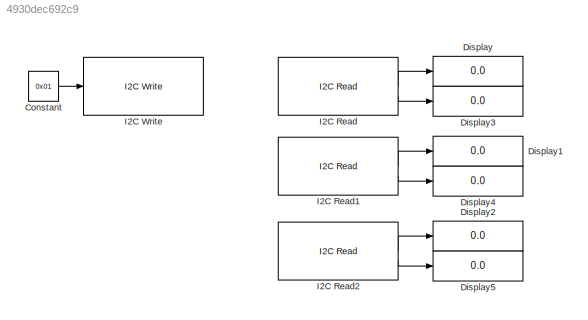
MODEL slx_4930dec692c9
KIND model
CONFIG AbsTol = auto
CONFIG EnableMultiTasking = off
CONFIG FixedStep = auto
CONFIG MaxStep = auto
CONFIG MinStep = auto
CONFIG RelTol = 1e-3
CONFIG SampleTimeConstraint = Unconstrained
CONFIG SolverName = FixedStepAuto
CONFIG StartTime = 0.0
CONFIG StopTime = inf
BLOCK [Constant] Constant
  Value = 0x01
BLOCK [Display] Display
  Decimation = 1
BLOCK [Display] Display1
  Decimation = 1
BLOCK [Display] Display2
  Decimation = 1
BLOCK [Display] Display3
  Decimation = 1
BLOCK [Display] Display4
  Decimation = 1
BLOCK [Display] Display5
  Decimation = 1
BLOCK [Reference] I2C Read  REF=arduinolib/I2C Read
  SourceBlock = arduinolib/I2C Read
  SourceType = I2C Read
BLOCK [Reference] I2C Read1  REF=arduinolib/I2C Read
  SourceBlock = arduinolib/I2C Read
  SourceType = I2C Read
BLOCK [Reference] I2C Read2  REF=arduinolib/I2C Read
  SourceBlock = arduinolib/I2C Read
  SourceType = I2C Read
BLOCK [Reference] I2C Write  REF=arduinolib/I2C Write
  SourceBlock = arduinolib/I2C Write
  SourceType = I2C Write
LINE Constant:1 -> I2C Write:1
LINE I2C Read1:1 -> Display1:1
LINE I2C Read1:2 -> Display4:1
LINE I2C Read2:1 -> Display2:1
LINE I2C Read2:2 -> Display5:1
LINE I2C Read:1 -> Display:1
LINE I2C Read:2 -> Display3:1
